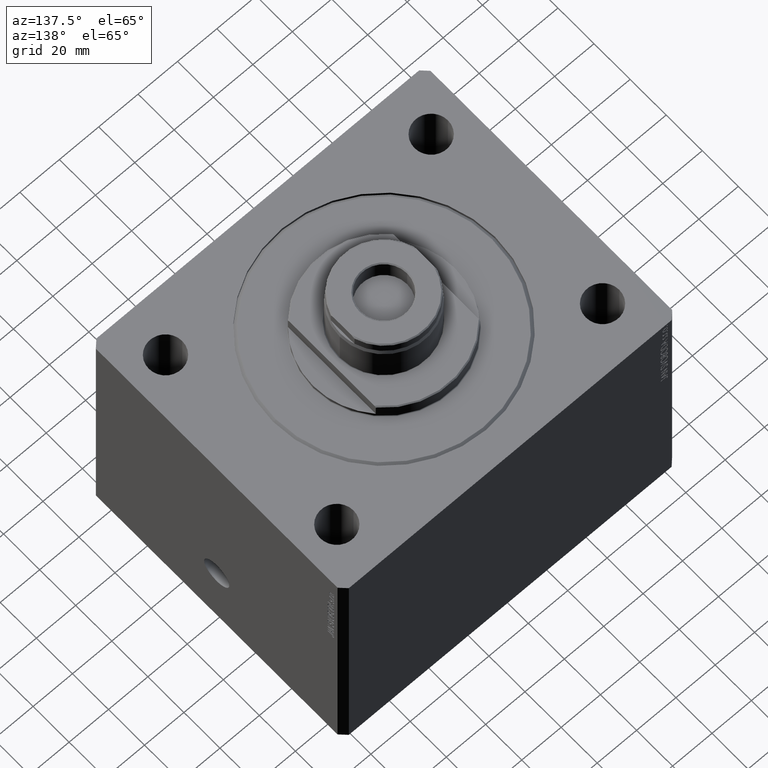
[diagram: clean part render]
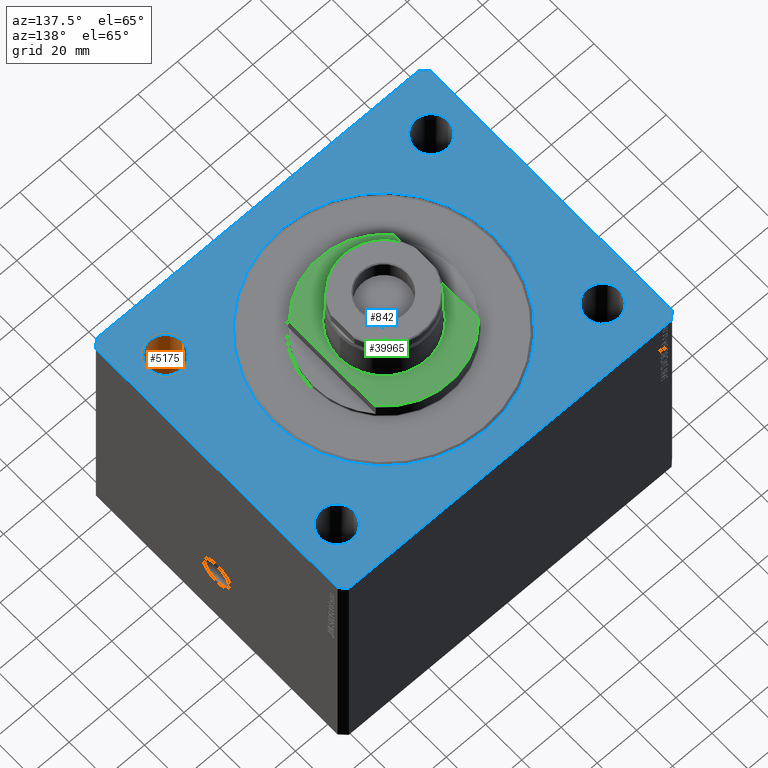
[diagram: same view with three faces highlighted in distinct colors, each labeled with its STEP entity id]
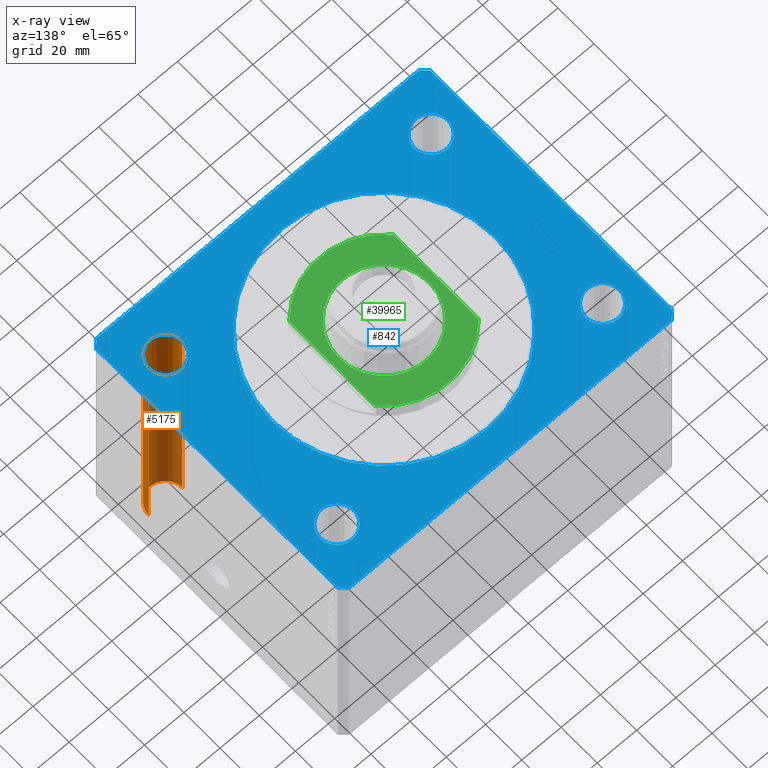
[diagram: x-ray of the same camera — body ghosted, the three highlighted faces saturated]
A machine part, auxiliary view with three faces highlighted in distinct colors.
The next image is the same camera in x-ray (body ghosted, the three faces saturated) — at least one of them is partly hidden behind the body in this view.
Their STEP definitions:

[orange] entity #5175 — the highlighted cylindrical surface (edge-blend (fillet) strip) has radius 8.5 mm, axis along (0, 0, 1).
#1025 = EDGE_CURVE ( 'NONE', #31778, #15242, #42976, .T. ) ;
#2856 = ORIENTED_EDGE ( 'NONE', *, *, #21842, .T. ) ;
#4534 = AXIS2_PLACEMENT_3D ( 'NONE', #28058, #34303, #10250 ) ;
#5175 = ADVANCED_FACE ( 'NONE', ( #15689 ), #5207, .F. ) ;
#5207 = CYLINDRICAL_SURFACE ( 'NONE', #25559, 8.499999999999992895 ) ;
#5905 = DIRECTION ( 'NONE',  ( -0.000000000000000000, -0.000000000000000000, 1.000000000000000000 ) ) ;
#6080 = CARTESIAN_POINT ( 'NONE',  ( 67.49999999999998579, -47.50000000000001421, -154.0416305603426395 ) ) ;
#8515 = VECTOR ( 'NONE', #5905, 1000.000000000000000 ) ;
#8722 = EDGE_CURVE ( 'NONE', #42511, #15242, #17629, .T. ) ;
#10250 = DIRECTION ( 'NONE',  ( 1.000000000000000000, 0.000000000000000000, 0.000000000000000000 ) ) ;
#11389 = CARTESIAN_POINT ( 'NONE',  ( 75.99999999999998579, -47.50000000000001421, 0.000000000000000000 ) ) ;
#11894 = AXIS2_PLACEMENT_3D ( 'NONE', #23739, #19128, #36270 ) ;
#12630 = CARTESIAN_POINT ( 'NONE',  ( 59.00000000000000000, -47.50000000000001421, -130.0000000000000000 ) ) ;
#12845 = ORIENTED_EDGE ( 'NONE', *, *, #1025, .T. ) ;
#13105 = EDGE_LOOP ( 'NONE', ( #23860, #2856, #12845, #31786 ) ) ;
#15087 = VECTOR ( 'NONE', #31202, 1000.000000000000000 ) ;
#15242 = VERTEX_POINT ( 'NONE', #11389 ) ;
#15689 = FACE_OUTER_BOUND ( 'NONE', #13105, .T. ) ;
#17629 = LINE ( 'NONE', #25191, #15087 ) ;
#18811 = DIRECTION ( 'NONE',  ( 1.000000000000000000, 0.000000000000000000, 0.000000000000000000 ) ) ;
#19128 = DIRECTION ( 'NONE',  ( -0.000000000000000000, -0.000000000000000000, -1.000000000000000000 ) ) ;
#20429 = CIRCLE ( 'NONE', #11894, 8.499999999999992895 ) ;
#21842 = EDGE_CURVE ( 'NONE', #29962, #31778, #29305, .T. ) ;
#23739 = CARTESIAN_POINT ( 'NONE',  ( 67.49999999999998579, -47.50000000000001421, -130.0000000000000000 ) ) ;
#23860 = ORIENTED_EDGE ( 'NONE', *, *, #38743, .T. ) ;
#25191 = CARTESIAN_POINT ( 'NONE',  ( 75.99999999999998579, -47.50000000000001421, -154.0416305603426395 ) ) ;
#25559 = AXIS2_PLACEMENT_3D ( 'NONE', #6080, #32380, #18811 ) ;
#26979 = CARTESIAN_POINT ( 'NONE',  ( 75.99999999999998579, -47.50000000000001421, -130.0000000000000000 ) ) ;
#28058 = CARTESIAN_POINT ( 'NONE',  ( 67.49999999999998579, -47.50000000000001421, 0.000000000000000000 ) ) ;
#29305 = LINE ( 'NONE', #36653, #8515 ) ;
#29962 = VERTEX_POINT ( 'NONE', #12630 ) ;
#30686 = CARTESIAN_POINT ( 'NONE',  ( 59.00000000000000000, -47.50000000000001421, 0.000000000000000000 ) ) ;
#31202 = DIRECTION ( 'NONE',  ( -0.000000000000000000, -0.000000000000000000, 1.000000000000000000 ) ) ;
#31778 = VERTEX_POINT ( 'NONE', #30686 ) ;
#31786 = ORIENTED_EDGE ( 'NONE', *, *, #8722, .F. ) ;
#32380 = DIRECTION ( 'NONE',  ( -0.000000000000000000, -0.000000000000000000, 1.000000000000000000 ) ) ;
#34303 = DIRECTION ( 'NONE',  ( 0.000000000000000000, 0.000000000000000000, 1.000000000000000000 ) ) ;
#36270 = DIRECTION ( 'NONE',  ( 1.000000000000000000, 0.000000000000000000, 0.000000000000000000 ) ) ;
#36653 = CARTESIAN_POINT ( 'NONE',  ( 59.00000000000000000, -47.50000000000001421, -154.0416305603426395 ) ) ;
#38743 = EDGE_CURVE ( 'NONE', #42511, #29962, #20429, .T. ) ;
#42511 = VERTEX_POINT ( 'NONE', #26979 ) ;
#42976 = CIRCLE ( 'NONE', #4534, 8.499999999999992895 ) ;

[blue] entity #842 — the highlighted planar face has unit normal (0, 0, 1).
#592 = CARTESIAN_POINT ( 'NONE',  ( -56.50000000000000711, 6.919254415182546126E-15, 0.000000000000000000 ) ) ;
#643 = DIRECTION ( 'NONE',  ( 1.000000000000000000, 0.000000000000000000, 0.000000000000000000 ) ) ;
#748 = VERTEX_POINT ( 'NONE', #10298 ) ;
#842 = ADVANCED_FACE ( 'NONE', ( #28553, #25860, #21880, #15631, #22525, #15198 ), #36105, .T. ) ;
#996 = VERTEX_POINT ( 'NONE', #17839 ) ;
#1025 = EDGE_CURVE ( 'NONE', #31778, #15242, #42976, .T. ) ;
#1324 = DIRECTION ( 'NONE',  ( 1.000000000000000000, 0.000000000000000000, 0.000000000000000000 ) ) ;
#1765 = EDGE_LOOP ( 'NONE', ( #5171, #18109, #14112, #22150, #17719, #36593, #7366, #23321 ) ) ;
#2502 = VERTEX_POINT ( 'NONE', #17471 ) ;
#2617 = VERTEX_POINT ( 'NONE', #25040 ) ;
#3498 = CIRCLE ( 'NONE', #14900, 8.499999999999992895 ) ;
#3652 = ORIENTED_EDGE ( 'NONE', *, *, #14236, .F. ) ;
#4057 = ORIENTED_EDGE ( 'NONE', *, *, #31729, .F. ) ;
#4455 = EDGE_LOOP ( 'NONE', ( #10933, #3652 ) ) ;
#4533 = DIRECTION ( 'NONE',  ( 0.000000000000000000, 0.000000000000000000, 1.000000000000000000 ) ) ;
#4534 = AXIS2_PLACEMENT_3D ( 'NONE', #28058, #34303, #10250 ) ;
#4622 = DIRECTION ( 'NONE',  ( 0.000000000000000000, 0.000000000000000000, 1.000000000000000000 ) ) ;
#4630 = CARTESIAN_POINT ( 'NONE',  ( -82.00000000000000000, -70.00000000000000000, 0.000000000000000000 ) ) ;
#4707 = DIRECTION ( 'NONE',  ( 1.000000000000000000, 0.000000000000000000, -0.000000000000000000 ) ) ;
#4846 = DIRECTION ( 'NONE',  ( 1.000000000000000000, 0.000000000000000000, 0.000000000000000000 ) ) ;
#5171 = ORIENTED_EDGE ( 'NONE', *, *, #42729, .T. ) ;
#5413 = LINE ( 'NONE', #23892, #21538 ) ;
#5585 = DIRECTION ( 'NONE',  ( 0.000000000000000000, 0.000000000000000000, 1.000000000000000000 ) ) ;
#5733 = VERTEX_POINT ( 'NONE', #26209 ) ;
#5791 = CARTESIAN_POINT ( 'NONE',  ( 0.000000000000000000, 0.000000000000000000, 0.000000000000000000 ) ) ;
#5859 = CIRCLE ( 'NONE', #33619, 8.499999999999992895 ) ;
#5886 = LINE ( 'NONE', #9230, #28949 ) ;
#6185 = CARTESIAN_POINT ( 'NONE',  ( -67.49999999999998579, -47.50000000000001421, 0.000000000000000000 ) ) ;
#6325 = CARTESIAN_POINT ( 'NONE',  ( -75.99999999999998579, -47.50000000000001421, 0.000000000000000000 ) ) ;
#7366 = ORIENTED_EDGE ( 'NONE', *, *, #15759, .T. ) ;
#7613 = EDGE_LOOP ( 'NONE', ( #4057, #43381 ) ) ;
#7630 = CARTESIAN_POINT ( 'NONE',  ( -76.00000000000000000, 47.50000000000000000, 0.000000000000000000 ) ) ;
#7662 = DIRECTION ( 'NONE',  ( 3.728360903591945148E-15, 1.000000000000000000, 0.000000000000000000 ) ) ;
#7693 = VERTEX_POINT ( 'NONE', #6325 ) ;
#8291 = DIRECTION ( 'NONE',  ( 0.7071067811865474617, 0.7071067811865474617, 0.000000000000000000 ) ) ;
#8514 = LINE ( 'NONE', #42180, #18248 ) ;
#9230 = CARTESIAN_POINT ( 'NONE',  ( -85.00000000000001421, 67.00000000000001421, 0.000000000000000000 ) ) ;
#9338 = CARTESIAN_POINT ( 'NONE',  ( 82.00000000000056843, 70.00000000000000000, 0.000000000000000000 ) ) ;
#9647 = VERTEX_POINT ( 'NONE', #10948 ) ;
#9725 = EDGE_CURVE ( 'NONE', #31014, #5733, #13616, .T. ) ;
#9748 = DIRECTION ( 'NONE',  ( 0.000000000000000000, 0.000000000000000000, 1.000000000000000000 ) ) ;
#10250 = DIRECTION ( 'NONE',  ( 1.000000000000000000, 0.000000000000000000, 0.000000000000000000 ) ) ;
#10262 = DIRECTION ( 'NONE',  ( 0.000000000000000000, 0.000000000000000000, 1.000000000000000000 ) ) ;
#10298 = CARTESIAN_POINT ( 'NONE',  ( -82.00000000000000000, -70.00000000000000000, 0.000000000000000000 ) ) ;
#10703 = DIRECTION ( 'NONE',  ( 1.000000000000000000, 0.000000000000000000, 0.000000000000000000 ) ) ;
#10873 = VECTOR ( 'NONE', #31113, 1000.000000000000114 ) ;
#10933 = ORIENTED_EDGE ( 'NONE', *, *, #35187, .F. ) ;
#10948 = CARTESIAN_POINT ( 'NONE',  ( -82.00000000000000000, 70.00000000000000000, 0.000000000000000000 ) ) ;
#11118 = CARTESIAN_POINT ( 'NONE',  ( -67.50000000000000000, 47.50000000000000000, 0.000000000000000000 ) ) ;
#11237 = VERTEX_POINT ( 'NONE', #23991 ) ;
#11269 = CIRCLE ( 'NONE', #42570, 8.499999999999992895 ) ;
#11389 = CARTESIAN_POINT ( 'NONE',  ( 75.99999999999998579, -47.50000000000001421, 0.000000000000000000 ) ) ;
#11586 = ORIENTED_EDGE ( 'NONE', *, *, #1025, .F. ) ;
#11959 = CARTESIAN_POINT ( 'NONE',  ( 67.50000000000000000, 47.49999999999999289, 0.000000000000000000 ) ) ;
#12034 = DIRECTION ( 'NONE',  ( -0.7071067811865507924, -0.7071067811865441310, 0.000000000000000000 ) ) ;
#12439 = EDGE_CURVE ( 'NONE', #11237, #748, #20445, .T. ) ;
#12907 = AXIS2_PLACEMENT_3D ( 'NONE', #11118, #38745, #643 ) ;
#12930 = EDGE_CURVE ( 'NONE', #35905, #2617, #5413, .T. ) ;
#13616 = CIRCLE ( 'NONE', #21449, 56.50000000000000711 ) ;
#14112 = ORIENTED_EDGE ( 'NONE', *, *, #30254, .T. ) ;
#14236 = EDGE_CURVE ( 'NONE', #38256, #22945, #5859, .T. ) ;
#14357 = CARTESIAN_POINT ( 'NONE',  ( 82.00000000000001421, -70.00000000000000000, 0.000000000000000000 ) ) ;
#14900 = AXIS2_PLACEMENT_3D ( 'NONE', #30669, #26226, #23776 ) ;
#14969 = EDGE_CURVE ( 'NONE', #20903, #23478, #8514, .T. ) ;
#15120 = EDGE_CURVE ( 'NONE', #5733, #31014, #16913, .T. ) ;
#15198 = FACE_OUTER_BOUND ( 'NONE', #1765, .T. ) ;
#15233 = LINE ( 'NONE', #41763, #38149 ) ;
#15242 = VERTEX_POINT ( 'NONE', #11389 ) ;
#15631 = FACE_BOUND ( 'NONE', #19724, .T. ) ;
#15759 = EDGE_CURVE ( 'NONE', #23478, #35905, #15233, .T. ) ;
#15840 = EDGE_CURVE ( 'NONE', #24418, #2502, #41724, .T. ) ;
#16128 = CIRCLE ( 'NONE', #36749, 8.500000000000007105 ) ;
#16279 = VECTOR ( 'NONE', #12034, 1000.000000000000114 ) ;
#16913 = CIRCLE ( 'NONE', #26157, 56.50000000000000711 ) ;
#16961 = CARTESIAN_POINT ( 'NONE',  ( 0.000000000000000000, 0.000000000000000000, 0.000000000000000000 ) ) ;
#17471 = CARTESIAN_POINT ( 'NONE',  ( 59.00000000000000000, 47.49999999999999289, 0.000000000000000000 ) ) ;
#17719 = ORIENTED_EDGE ( 'NONE', *, *, #44058, .T. ) ;
#17839 = CARTESIAN_POINT ( 'NONE',  ( -85.00000000000001421, 67.00000000000001421, 0.000000000000000000 ) ) ;
#18024 = LINE ( 'NONE', #4630, #32460 ) ;
#18109 = ORIENTED_EDGE ( 'NONE', *, *, #42797, .T. ) ;
#18248 = VECTOR ( 'NONE', #8291, 1000.000000000000114 ) ;
#18882 = CARTESIAN_POINT ( 'NONE',  ( 76.00000000000001421, 47.49999999999999289, 0.000000000000000000 ) ) ;
#18918 = CARTESIAN_POINT ( 'NONE',  ( 85.00000000000001421, -67.00000000000000000, 0.000000000000000000 ) ) ;
#19045 = AXIS2_PLACEMENT_3D ( 'NONE', #32150, #4533, #21269 ) ;
#19491 = AXIS2_PLACEMENT_3D ( 'NONE', #38593, #5585, #4707 ) ;
#19724 = EDGE_LOOP ( 'NONE', ( #42394, #23145 ) ) ;
#20445 = LINE ( 'NONE', #40735, #10873 ) ;
#20450 = CARTESIAN_POINT ( 'NONE',  ( -59.00000000000001421, 47.50000000000000000, 0.000000000000000000 ) ) ;
#20903 = VERTEX_POINT ( 'NONE', #14357 ) ;
#21269 = DIRECTION ( 'NONE',  ( 1.000000000000000000, 0.000000000000000000, 0.000000000000000000 ) ) ;
#21449 = AXIS2_PLACEMENT_3D ( 'NONE', #5791, #22732, #35869 ) ;
#21538 = VECTOR ( 'NONE', #37918, 1000.000000000000114 ) ;
#21880 = FACE_BOUND ( 'NONE', #41059, .T. ) ;
#22150 = ORIENTED_EDGE ( 'NONE', *, *, #12439, .T. ) ;
#22525 = FACE_BOUND ( 'NONE', #4455, .T. ) ;
#22732 = DIRECTION ( 'NONE',  ( 0.000000000000000000, 0.000000000000000000, 1.000000000000000000 ) ) ;
#22936 = DIRECTION ( 'NONE',  ( -1.000000000000000000, 0.000000000000000000, 0.000000000000000000 ) ) ;
#22945 = VERTEX_POINT ( 'NONE', #20450 ) ;
#23145 = ORIENTED_EDGE ( 'NONE', *, *, #36942, .F. ) ;
#23321 = ORIENTED_EDGE ( 'NONE', *, *, #12930, .T. ) ;
#23350 = CARTESIAN_POINT ( 'NONE',  ( -59.00000000000000000, -47.50000000000001421, 0.000000000000000000 ) ) ;
#23478 = VERTEX_POINT ( 'NONE', #18918 ) ;
#23776 = DIRECTION ( 'NONE',  ( 1.000000000000000000, 0.000000000000000000, 0.000000000000000000 ) ) ;
#23892 = CARTESIAN_POINT ( 'NONE',  ( 85.00000000000052580, 66.99999999999995737, 0.000000000000000000 ) ) ;
#23991 = CARTESIAN_POINT ( 'NONE',  ( -85.00000000000000000, -67.00000000000000000, 0.000000000000000000 ) ) ;
#24008 = AXIS2_PLACEMENT_3D ( 'NONE', #6185, #9748, #37155 ) ;
#24418 = VERTEX_POINT ( 'NONE', #18882 ) ;
#24743 = CIRCLE ( 'NONE', #24008, 8.499999999999992895 ) ;
#24905 = ORIENTED_EDGE ( 'NONE', *, *, #15120, .F. ) ;
#25040 = CARTESIAN_POINT ( 'NONE',  ( 82.00000000000056843, 70.00000000000000000, 0.000000000000000000 ) ) ;
#25860 = FACE_BOUND ( 'NONE', #7613, .T. ) ;
#26038 = LINE ( 'NONE', #9338, #37619 ) ;
#26072 = EDGE_CURVE ( 'NONE', #15242, #31778, #3498, .T. ) ;
#26157 = AXIS2_PLACEMENT_3D ( 'NONE', #16961, #10262, #10703 ) ;
#26209 = CARTESIAN_POINT ( 'NONE',  ( 56.50000000000000711, 0.000000000000000000, 0.000000000000000000 ) ) ;
#26226 = DIRECTION ( 'NONE',  ( 0.000000000000000000, 0.000000000000000000, 1.000000000000000000 ) ) ;
#26288 = CARTESIAN_POINT ( 'NONE',  ( 85.00000000000052580, 66.99999999999995737, 0.000000000000000000 ) ) ;
#27460 = ORIENTED_EDGE ( 'NONE', *, *, #9725, .F. ) ;
#28058 = CARTESIAN_POINT ( 'NONE',  ( 67.49999999999998579, -47.50000000000001421, 0.000000000000000000 ) ) ;
#28553 = FACE_BOUND ( 'NONE', #43412, .T. ) ;
#28949 = VECTOR ( 'NONE', #33058, 1000.000000000000000 ) ;
#30254 = EDGE_CURVE ( 'NONE', #996, #11237, #5886, .T. ) ;
#30669 = CARTESIAN_POINT ( 'NONE',  ( 67.49999999999998579, -47.50000000000001421, 0.000000000000000000 ) ) ;
#30686 = CARTESIAN_POINT ( 'NONE',  ( 59.00000000000000000, -47.50000000000001421, 0.000000000000000000 ) ) ;
#31014 = VERTEX_POINT ( 'NONE', #592 ) ;
#31113 = DIRECTION ( 'NONE',  ( 0.7071067811865474617, -0.7071067811865474617, 0.000000000000000000 ) ) ;
#31729 = EDGE_CURVE ( 'NONE', #31750, #7693, #24743, .T. ) ;
#31750 = VERTEX_POINT ( 'NONE', #23350 ) ;
#31778 = VERTEX_POINT ( 'NONE', #30686 ) ;
#32068 = DIRECTION ( 'NONE',  ( 0.000000000000000000, 0.000000000000000000, 1.000000000000000000 ) ) ;
#32150 = CARTESIAN_POINT ( 'NONE',  ( 67.50000000000000000, 47.49999999999999289, 0.000000000000000000 ) ) ;
#32453 = CARTESIAN_POINT ( 'NONE',  ( -67.49999999999998579, -47.50000000000001421, 0.000000000000000000 ) ) ;
#32460 = VECTOR ( 'NONE', #38951, 1000.000000000000000 ) ;
#33058 = DIRECTION ( 'NONE',  ( 1.035655806553317576E-16, -1.000000000000000000, 0.000000000000000000 ) ) ;
#33619 = AXIS2_PLACEMENT_3D ( 'NONE', #41676, #32068, #1324 ) ;
#34303 = DIRECTION ( 'NONE',  ( 0.000000000000000000, 0.000000000000000000, 1.000000000000000000 ) ) ;
#35187 = EDGE_CURVE ( 'NONE', #22945, #38256, #39942, .T. ) ;
#35869 = DIRECTION ( 'NONE',  ( 1.000000000000000000, 0.000000000000000000, 0.000000000000000000 ) ) ;
#35905 = VERTEX_POINT ( 'NONE', #26288 ) ;
#36105 = PLANE ( 'NONE',  #19491 ) ;
#36593 = ORIENTED_EDGE ( 'NONE', *, *, #14969, .T. ) ;
#36749 = AXIS2_PLACEMENT_3D ( 'NONE', #11959, #43146, #39573 ) ;
#36942 = EDGE_CURVE ( 'NONE', #2502, #24418, #16128, .T. ) ;
#37155 = DIRECTION ( 'NONE',  ( 1.000000000000000000, 0.000000000000000000, 0.000000000000000000 ) ) ;
#37619 = VECTOR ( 'NONE', #22936, 1000.000000000000000 ) ;
#37692 = ORIENTED_EDGE ( 'NONE', *, *, #26072, .F. ) ;
#37918 = DIRECTION ( 'NONE',  ( -0.7071067811865361374, 0.7071067811865588970, 0.000000000000000000 ) ) ;
#38149 = VECTOR ( 'NONE', #7662, 1000.000000000000000 ) ;
#38256 = VERTEX_POINT ( 'NONE', #7630 ) ;
#38593 = CARTESIAN_POINT ( 'NONE',  ( 0.000000000000000000, 0.000000000000000000, 0.000000000000000000 ) ) ;
#38745 = DIRECTION ( 'NONE',  ( 0.000000000000000000, 0.000000000000000000, 1.000000000000000000 ) ) ;
#38951 = DIRECTION ( 'NONE',  ( 1.000000000000000000, 0.000000000000000000, 0.000000000000000000 ) ) ;
#39430 = LINE ( 'NONE', #42567, #16279 ) ;
#39573 = DIRECTION ( 'NONE',  ( 1.000000000000000000, 0.000000000000000000, 0.000000000000000000 ) ) ;
#39942 = CIRCLE ( 'NONE', #12907, 8.499999999999992895 ) ;
#40719 = EDGE_CURVE ( 'NONE', #7693, #31750, #11269, .T. ) ;
#40735 = CARTESIAN_POINT ( 'NONE',  ( -85.00000000000000000, -67.00000000000000000, 0.000000000000000000 ) ) ;
#41059 = EDGE_LOOP ( 'NONE', ( #37692, #11586 ) ) ;
#41676 = CARTESIAN_POINT ( 'NONE',  ( -67.50000000000000000, 47.50000000000000000, 0.000000000000000000 ) ) ;
#41724 = CIRCLE ( 'NONE', #19045, 8.500000000000007105 ) ;
#41763 = CARTESIAN_POINT ( 'NONE',  ( 85.00000000000001421, -67.00000000000000000, 0.000000000000000000 ) ) ;
#42180 = CARTESIAN_POINT ( 'NONE',  ( 82.00000000000001421, -70.00000000000000000, 0.000000000000000000 ) ) ;
#42394 = ORIENTED_EDGE ( 'NONE', *, *, #15840, .F. ) ;
#42567 = CARTESIAN_POINT ( 'NONE',  ( -82.00000000000000000, 70.00000000000000000, 0.000000000000000000 ) ) ;
#42570 = AXIS2_PLACEMENT_3D ( 'NONE', #32453, #4622, #4846 ) ;
#42729 = EDGE_CURVE ( 'NONE', #2617, #9647, #26038, .T. ) ;
#42797 = EDGE_CURVE ( 'NONE', #9647, #996, #39430, .T. ) ;
#42976 = CIRCLE ( 'NONE', #4534, 8.499999999999992895 ) ;
#43146 = DIRECTION ( 'NONE',  ( 0.000000000000000000, 0.000000000000000000, 1.000000000000000000 ) ) ;
#43381 = ORIENTED_EDGE ( 'NONE', *, *, #40719, .F. ) ;
#43412 = EDGE_LOOP ( 'NONE', ( #24905, #27460 ) ) ;
#44058 = EDGE_CURVE ( 'NONE', #748, #20903, #18024, .T. ) ;

[green] entity #39965 — the highlighted planar face has unit normal (0, 0, 1).
#1257 = VECTOR ( 'NONE', #19511, 1000.000000000000000 ) ;
#1650 = EDGE_LOOP ( 'NONE', ( #7286, #43006 ) ) ;
#2265 = CIRCLE ( 'NONE', #22922, 35.49999999999999289 ) ;
#2608 = AXIS2_PLACEMENT_3D ( 'NONE', #13851, #10074, #9852 ) ;
#3299 = CIRCLE ( 'NONE', #39605, 23.00000000000003197 ) ;
#3581 = VERTEX_POINT ( 'NONE', #8708 ) ;
#4671 = DIRECTION ( 'NONE',  ( 0.000000000000000000, 0.000000000000000000, -1.000000000000000000 ) ) ;
#6654 = EDGE_CURVE ( 'NONE', #36272, #40229, #27471, .T. ) ;
#6799 = DIRECTION ( 'NONE',  ( -1.000000000000000000, 0.000000000000000000, 0.000000000000000000 ) ) ;
#7286 = ORIENTED_EDGE ( 'NONE', *, *, #16032, .T. ) ;
#7912 = ORIENTED_EDGE ( 'NONE', *, *, #6654, .T. ) ;
#8031 = CARTESIAN_POINT ( 'NONE',  ( 0.000000000000000000, 0.000000000000000000, -8.000000000000000000 ) ) ;
#8708 = CARTESIAN_POINT ( 'NONE',  ( 26.50000000000000000, -23.62202362203541739, -8.000000000000000000 ) ) ;
#8831 = DIRECTION ( 'NONE',  ( 0.000000000000000000, 0.000000000000000000, -1.000000000000000000 ) ) ;
#9053 = PLANE ( 'NONE',  #25439 ) ;
#9852 = DIRECTION ( 'NONE',  ( -1.000000000000000000, 0.000000000000000000, 0.000000000000000000 ) ) ;
#10074 = DIRECTION ( 'NONE',  ( -0.000000000000000000, -0.000000000000000000, 1.000000000000000000 ) ) ;
#10407 = AXIS2_PLACEMENT_3D ( 'NONE', #8031, #4671, #38333 ) ;
#11019 = EDGE_CURVE ( 'NONE', #3581, #15262, #2265, .T. ) ;
#13442 = VERTEX_POINT ( 'NONE', #26417 ) ;
#13851 = CARTESIAN_POINT ( 'NONE',  ( 0.000000000000000000, 0.000000000000000000, -8.000000000000000000 ) ) ;
#15262 = VERTEX_POINT ( 'NONE', #34775 ) ;
#16032 = EDGE_CURVE ( 'NONE', #29486, #13442, #17551, .T. ) ;
#16189 = FACE_OUTER_BOUND ( 'NONE', #22063, .T. ) ;
#16851 = ORIENTED_EDGE ( 'NONE', *, *, #32082, .F. ) ;
#17551 = CIRCLE ( 'NONE', #2608, 23.00000000000003197 ) ;
#18892 = DIRECTION ( 'NONE',  ( 0.000000000000000000, 0.000000000000000000, -1.000000000000000000 ) ) ;
#19107 = DIRECTION ( 'NONE',  ( -1.000000000000000000, 0.000000000000000000, 0.000000000000000000 ) ) ;
#19511 = DIRECTION ( 'NONE',  ( -0.000000000000000000, -1.000000000000000000, -0.000000000000000000 ) ) ;
#21985 = CARTESIAN_POINT ( 'NONE',  ( -26.50000000000000000, 23.62202362203541739, -8.000000000000000000 ) ) ;
#22063 = EDGE_LOOP ( 'NONE', ( #7912, #24376, #28609, #16851 ) ) ;
#22654 = CARTESIAN_POINT ( 'NONE',  ( 0.000000000000000000, 0.000000000000000000, -8.000000000000000000 ) ) ;
#22922 = AXIS2_PLACEMENT_3D ( 'NONE', #42305, #18892, #19107 ) ;
#23531 = DIRECTION ( 'NONE',  ( -0.000000000000000000, -0.000000000000000000, 1.000000000000000000 ) ) ;
#24362 = CARTESIAN_POINT ( 'NONE',  ( -23.00000000000003197, 0.000000000000000000, -8.000000000000000000 ) ) ;
#24376 = ORIENTED_EDGE ( 'NONE', *, *, #32248, .T. ) ;
#25265 = DIRECTION ( 'NONE',  ( 0.000000000000000000, -1.000000000000000000, -0.000000000000000000 ) ) ;
#25439 = AXIS2_PLACEMENT_3D ( 'NONE', #22654, #8831, #36233 ) ;
#25700 = CARTESIAN_POINT ( 'NONE',  ( 26.50000000000000000, -36.36963018783666257, -8.000000000000000000 ) ) ;
#25916 = LINE ( 'NONE', #25700, #31846 ) ;
#26417 = CARTESIAN_POINT ( 'NONE',  ( 23.00000000000003197, 2.816687638038916296E-15, -8.000000000000000000 ) ) ;
#27471 = CIRCLE ( 'NONE', #10407, 35.49999999999999289 ) ;
#28609 = ORIENTED_EDGE ( 'NONE', *, *, #11019, .T. ) ;
#29486 = VERTEX_POINT ( 'NONE', #24362 ) ;
#31846 = VECTOR ( 'NONE', #25265, 1000.000000000000000 ) ;
#32082 = EDGE_CURVE ( 'NONE', #36272, #15262, #39793, .T. ) ;
#32248 = EDGE_CURVE ( 'NONE', #40229, #3581, #25916, .T. ) ;
#34775 = CARTESIAN_POINT ( 'NONE',  ( -26.50000000000000000, -23.62202362203541739, -8.000000000000000000 ) ) ;
#36233 = DIRECTION ( 'NONE',  ( -1.000000000000000000, 0.000000000000000000, -0.000000000000000000 ) ) ;
#36272 = VERTEX_POINT ( 'NONE', #21985 ) ;
#36441 = CARTESIAN_POINT ( 'NONE',  ( -26.50000000000000000, -36.36963018783666257, -8.000000000000000000 ) ) ;
#36555 = CARTESIAN_POINT ( 'NONE',  ( 26.50000000000000000, 23.62202362203541739, -8.000000000000000000 ) ) ;
#37130 = EDGE_CURVE ( 'NONE', #13442, #29486, #3299, .T. ) ;
#38333 = DIRECTION ( 'NONE',  ( -1.000000000000000000, 0.000000000000000000, 0.000000000000000000 ) ) ;
#39585 = FACE_BOUND ( 'NONE', #1650, .T. ) ;
#39605 = AXIS2_PLACEMENT_3D ( 'NONE', #43372, #23531, #6799 ) ;
#39793 = LINE ( 'NONE', #36441, #1257 ) ;
#39965 = ADVANCED_FACE ( 'NONE', ( #39585, #16189 ), #9053, .T. ) ;
#40229 = VERTEX_POINT ( 'NONE', #36555 ) ;
#42305 = CARTESIAN_POINT ( 'NONE',  ( 0.000000000000000000, 0.000000000000000000, -8.000000000000000000 ) ) ;
#43006 = ORIENTED_EDGE ( 'NONE', *, *, #37130, .T. ) ;
#43372 = CARTESIAN_POINT ( 'NONE',  ( 0.000000000000000000, 0.000000000000000000, -8.000000000000000000 ) ) ;